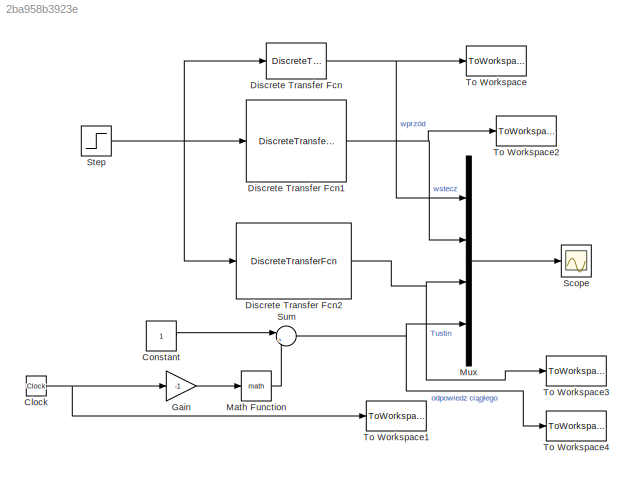
MODEL slx_2ba958b3923e
KIND model
CONFIG AbsTol = auto
CONFIG EnableMultiTasking = off
CONFIG FixedStep = T
CONFIG MaxStep = auto
CONFIG MinStep = auto
CONFIG RelTol = 1e-3
CONFIG SampleTimeConstraint = Unconstrained
CONFIG Solver = FixedStepDiscrete
CONFIG SolverName = FixedStepDiscrete
CONFIG StartTime = 0.0
CONFIG StopTime = 10.0
BLOCK [Clock] Clock
BLOCK [Constant] Constant
BLOCK [DiscreteTransferFcn] Discrete Transfer Fcn
  Denominator = [1 T-1]
  InputPortMap = u0
  Numerator = [T]
  Ports = [1, 1]
  SampleTime = T
BLOCK [DiscreteTransferFcn] Discrete Transfer Fcn1
  Denominator = [T+1 -1]
  InputPortMap = u0
  Numerator = [T 0]
  Ports = [1, 1]
  SampleTime = T
BLOCK [DiscreteTransferFcn] Discrete Transfer Fcn2
  Denominator = [2+T T-2]
  InputPortMap = u0
  Numerator = [T T]
  Ports = [1, 1]
  SampleTime = T
BLOCK [Gain] Gain
  Gain = -1
  OutDataTypeStr = Inherit: Inherit via internal rule
  ParamDataTypeStr = Inherit: Inherit via internal rule
  SaturateOnIntegerOverflow = off
BLOCK [Math] Math Function
  Ports = [1, 1]
BLOCK [Mux] Mux
  DisplayOption = bar
  Ports = [4, 1]
BLOCK [Scope] Scope
  Floating = off
  NumInputPorts = 1
  Ports = [1]
  ScopeSpecificationString = Simulink.scopes.TimeScopeBlockCfg('CurrentConfiguration', extmgr.ConfigurationSet(extmgr.Configuration('Core','General UI',true),extmgr.Configuration('Core','Source UI',true),extmgr.Configuration('Sources','WiredSimulink',true),extmgr.Configuration('Visuals','Time Domain',true,'SerializedDisplays',{struct('MinYLimReal','-0.125','MaxYLimReal','1.125','YLabelReal','','MinYLimMag','0.00000','MaxYLimM...<+1399ch>
BLOCK [Step] Step
  SampleTime = 0
  Time = 0
BLOCK [Sum] Sum
  IconShape = round
  InputSameDT = off
  Inputs = |+-
  OutDataTypeStr = Inherit: Inherit via internal rule
  Ports = [2, 1]
  SaturateOnIntegerOverflow = off
BLOCK [ToWorkspace] To Workspace
  FixptAsFi = on
  MaxDataPoints = inf
  Ports = [1]
  SampleTime = -1
  Save2DSignal = 3-D array (concatenate along third dimension)
  VariableName = y_wp
BLOCK [ToWorkspace] To Workspace1
  FixptAsFi = on
  MaxDataPoints = inf
  Ports = [1]
  SampleTime = -1
  Save2DSignal = 3-D array (concatenate along third dimension)
  VariableName = t
BLOCK [ToWorkspace] To Workspace2
  FixptAsFi = on
  MaxDataPoints = inf
  Ports = [1]
  SampleTime = -1
  Save2DSignal = 3-D array (concatenate along third dimension)
  VariableName = y_wt
BLOCK [ToWorkspace] To Workspace3
  FixptAsFi = on
  MaxDataPoints = inf
  Ports = [1]
  SampleTime = -1
  Save2DSignal = 3-D array (concatenate along third dimension)
  VariableName = y_tus
BLOCK [ToWorkspace] To Workspace4
  FixptAsFi = on
  MaxDataPoints = inf
  Ports = [1]
  SampleTime = -1
  Save2DSignal = 3-D array (concatenate along third dimension)
  VariableName = y_cont
NET Clock:1 -> Gain:1, To Workspace1:1
LINE Constant:1 -> Sum:1
NET Discrete Transfer Fcn1:1 -> Mux:2, To Workspace2:1
NET Discrete Transfer Fcn2:1 -> Mux:3, To Workspace3:1
NET Discrete Transfer Fcn:1 -> Mux:1, To Workspace:1
LINE Gain:1 -> Math Function:1
LINE Math Function:1 -> Sum:2
LINE Mux:1 -> Scope:1
NET Step:1 -> Discrete Transfer Fcn1:1, Discrete Transfer Fcn2:1, Discrete Transfer Fcn:1
NET Sum:1 -> Mux:4, To Workspace4:1
note: NET lines group one-source signal fan-out (src -> all destinations, sorted); 1:1 wires keep LINE
